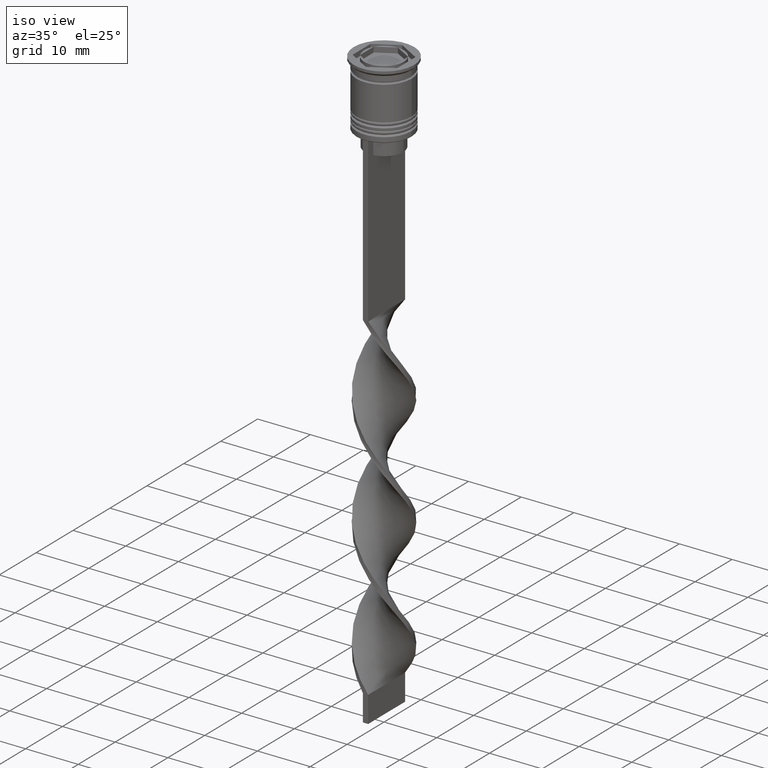
[diagram: clean part render]
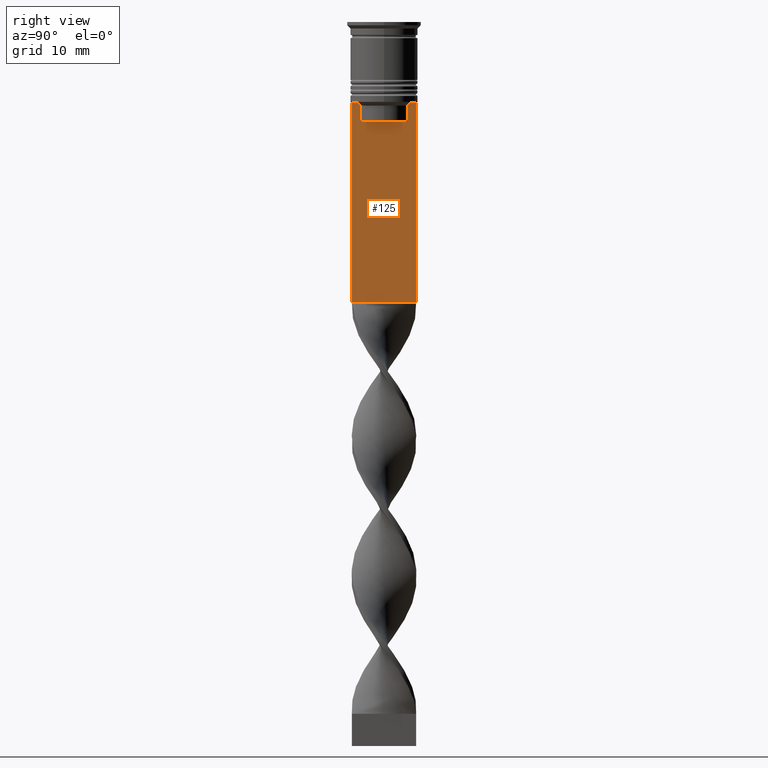
[diagram: tour spotlight — one face highlighted and labeled with its STEP entity id]
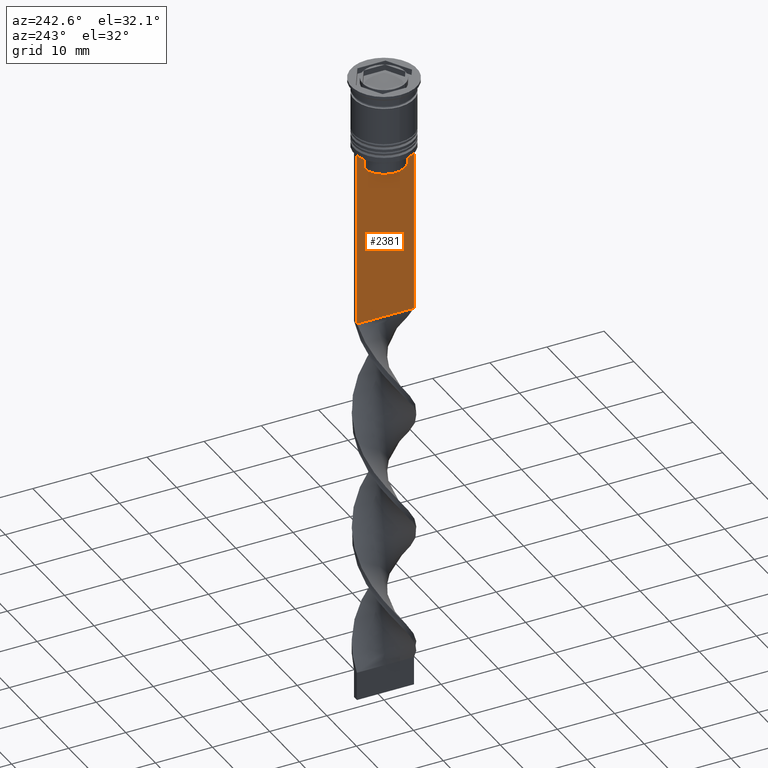
[diagram: tour spotlight — one face highlighted and labeled with its STEP entity id]
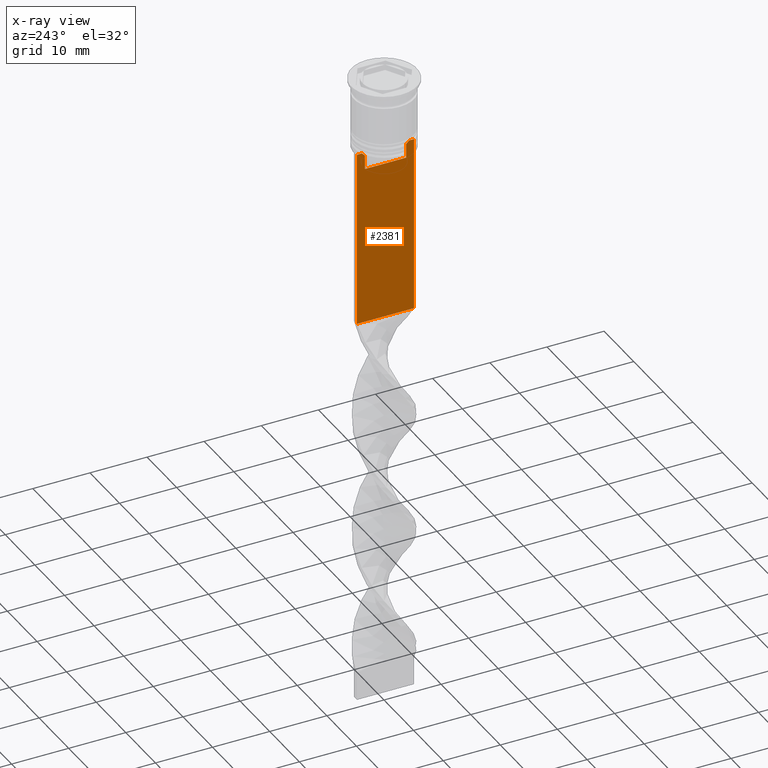
[diagram: x-ray of the same camera — body ghosted, this tour face saturated]
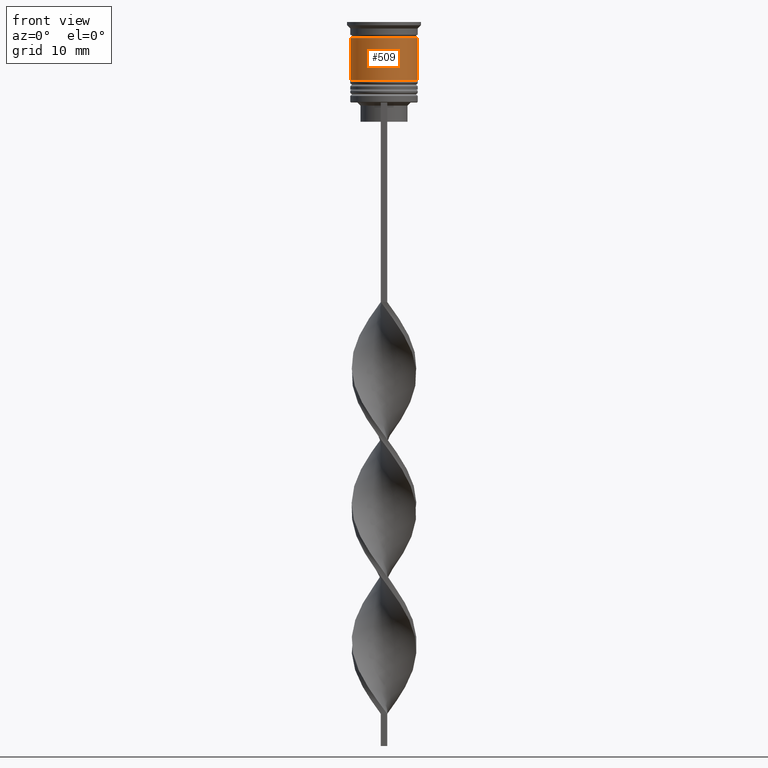
[diagram: tour spotlight — one face highlighted and labeled with its STEP entity id]
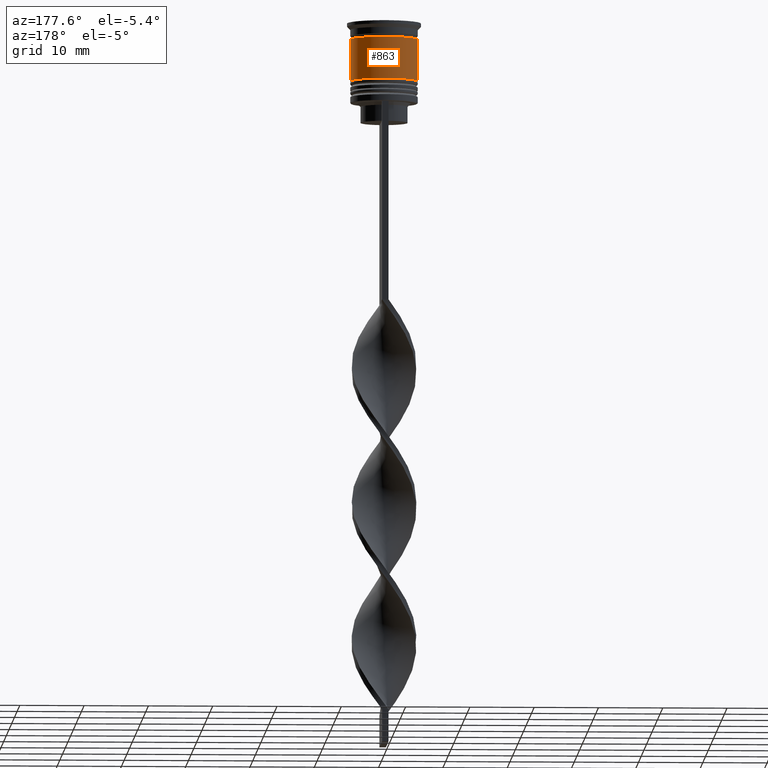
[diagram: tour spotlight — one face highlighted and labeled with its STEP entity id]
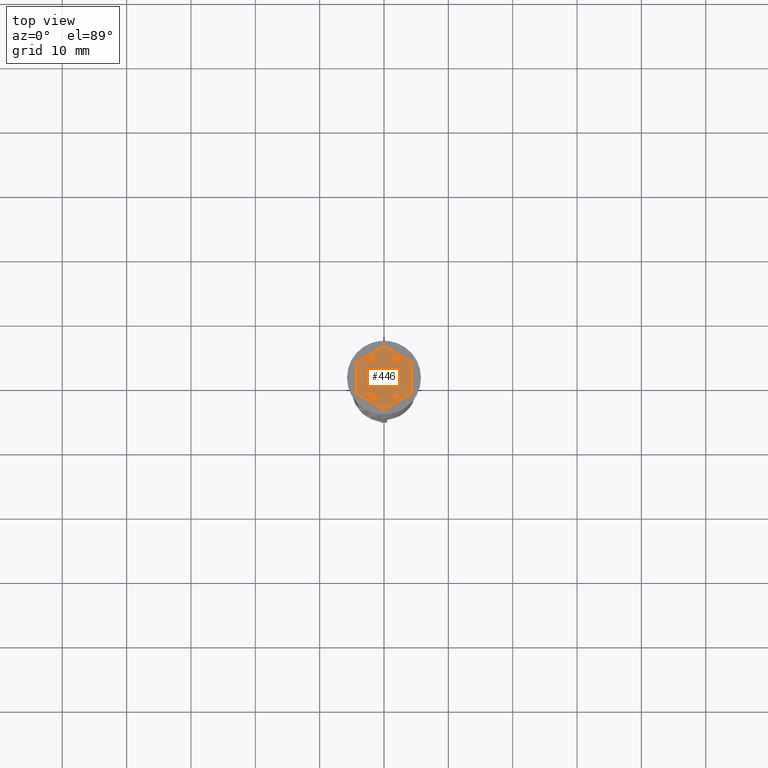
[diagram: tour spotlight — one face highlighted and labeled with its STEP entity id]
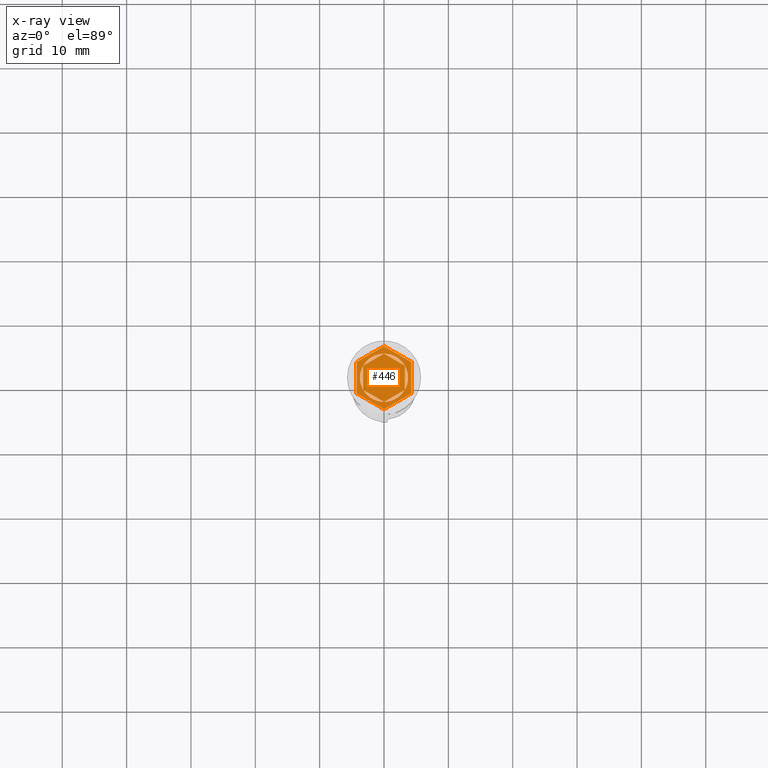
[diagram: x-ray of the same camera — body ghosted, this tour face saturated]
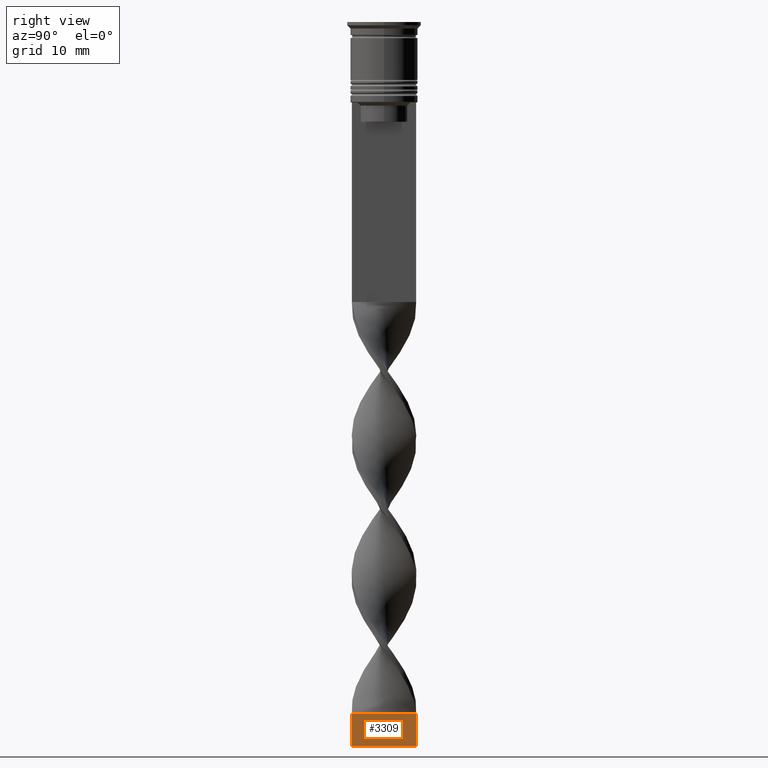
[diagram: tour spotlight — one face highlighted and labeled with its STEP entity id]
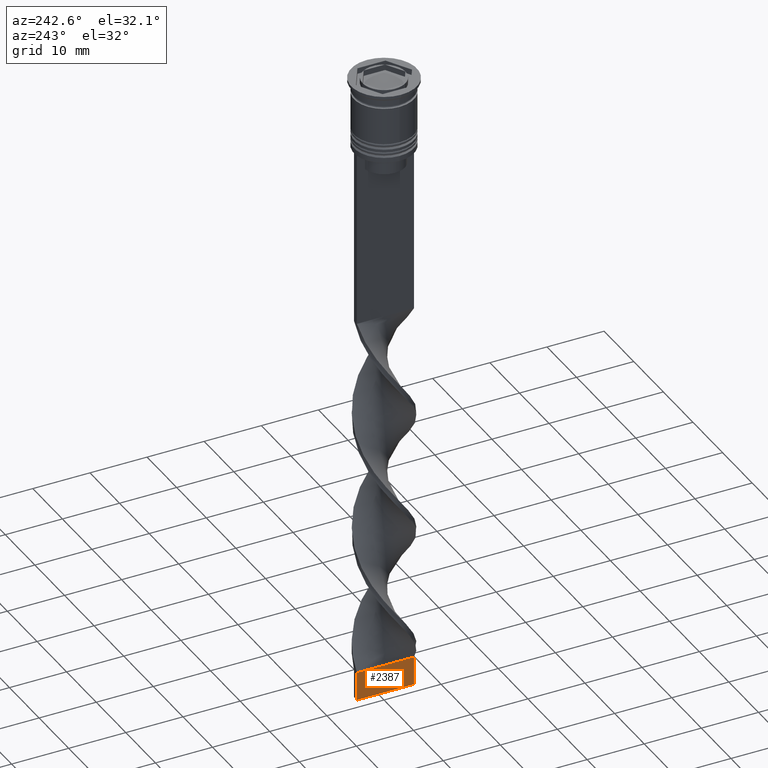
[diagram: tour spotlight — one face highlighted and labeled with its STEP entity id]
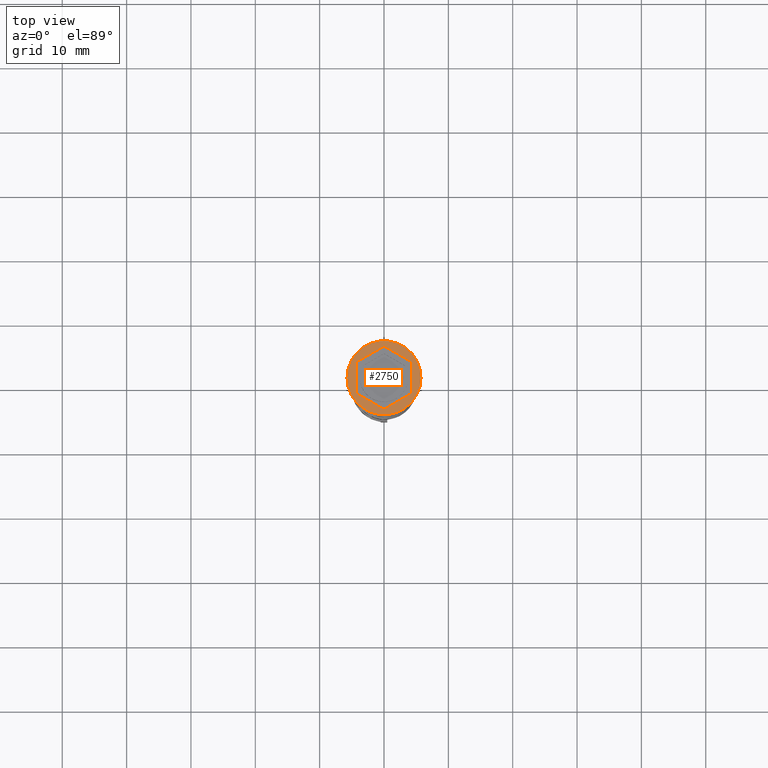
[diagram: tour spotlight — one face highlighted and labeled with its STEP entity id]
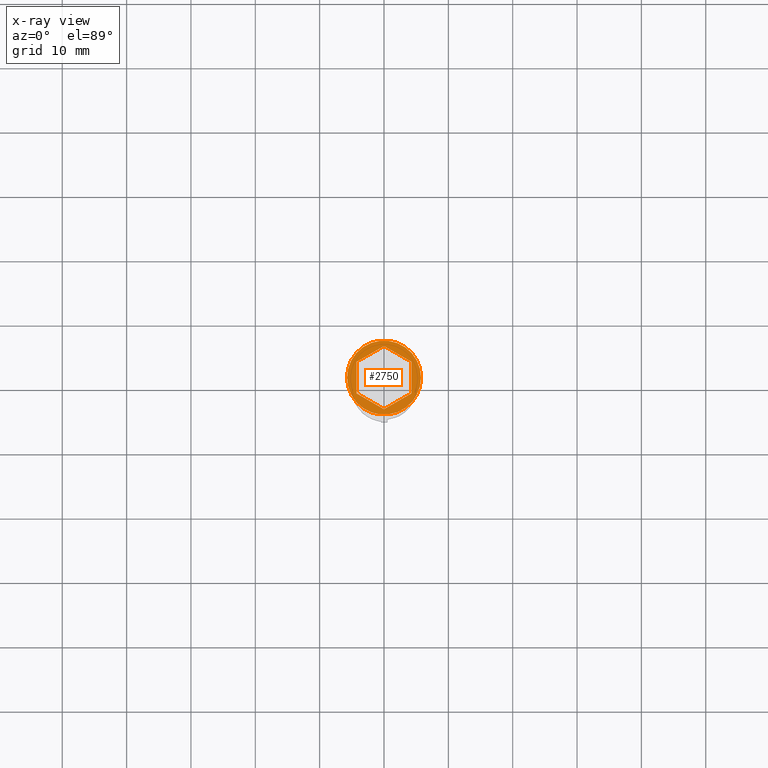
[diagram: x-ray of the same camera — body ghosted, this tour face saturated]
A machine part: a face-by-face anatomy tour. The part has 95 B-rep faces; the first image is the clean iso view, then the 8 largest visible faces are spotlighted one at a time (largest first), each with its STEP entity span.

Face 1 — right view, entity #125. In plain terms, the highlighted planar face has unit normal (-1, 0, 0).
Definition (entity closure, byte-faithful):
#47 = CARTESIAN_POINT ( 'NONE',  ( 0.5000000000000000000, 3.615591237958188042, -13.00000000000000178 ) ) ;
#80 = LINE ( 'NONE', #3315, #1233 ) ;
#125 = ADVANCED_FACE ( 'NONE', ( #648 ), #360, .F. ) ;
#155 = VECTOR ( 'NONE', #1322, 1000.000000000000000 ) ;
#189 = EDGE_CURVE ( 'NONE', #733, #1301, #2890, .T. ) ;
#208 = VERTEX_POINT ( 'NONE', #735 ) ;
#280 = CARTESIAN_POINT ( 'NONE',  ( 0.5000000000000000000, 5.000000000000000888, -12.50000000000000000 ) ) ;
#283 = CARTESIAN_POINT ( 'NONE',  ( 0.5000000000000000000, 5.000000000000000888, -43.50000000000000000 ) ) ;
#327 = VERTEX_POINT ( 'NONE', #1881 ) ;
#360 = PLANE ( 'NONE',  #1274 ) ;
#366 = CARTESIAN_POINT ( 'NONE',  ( 0.5000000000000000000, -4.999999999999999112, -12.50000000000000000 ) ) ;
#409 = CARTESIAN_POINT ( 'NONE',  ( 0.5000000000000000000, -3.615591237958188042, -13.00000000000000178 ) ) ;
#415 = ORIENTED_EDGE ( 'NONE', *, *, #3276, .T. ) ;
#428 = VECTOR ( 'NONE', #1180, 1000.000000000000000 ) ;
#458 = VERTEX_POINT ( 'NONE', #283 ) ;
#613 = B_SPLINE_CURVE_WITH_KNOTS ( 'NONE', 3,
 ( #2005, #2279, #3335, #47 ),
 .UNSPECIFIED., .F., .F.,
 ( 4, 4 ),
 ( 0.007067514914986626831, 0.007777582239375525376 ),
 .UNSPECIFIED. ) ;
#617 = ORIENTED_EDGE ( 'NONE', *, *, #2042, .T. ) ;
#648 = FACE_OUTER_BOUND ( 'NONE', #954, .T. ) ;
#669 = VECTOR ( 'NONE', #837, 1000.000000000000000 ) ;
#670 = VECTOR ( 'NONE', #2687, 1000.000000000000000 ) ;
#680 = CARTESIAN_POINT ( 'NONE',  ( 0.5000000000000000000, -4.119769411022908834, -12.50000000000000000 ) ) ;
#698 = LINE ( 'NONE', #1546, #2539 ) ;
#717 = VECTOR ( 'NONE', #1421, 1000.000000000000000 ) ;
#733 = VERTEX_POINT ( 'NONE', #280 ) ;
#735 = CARTESIAN_POINT ( 'NONE',  ( 0.5000000000000000000, -3.615591237958188042, -13.00000000000000178 ) ) ;
#814 = B_SPLINE_CURVE_WITH_KNOTS ( 'NONE', 3,
 ( #409, #1492, #950, #680 ),
 .UNSPECIFIED., .F., .F.,
 ( 4, 4 ),
 ( 0.01745179617248910492, 0.01816207215777258452 ),
 .UNSPECIFIED. ) ;
#815 = LINE ( 'NONE', #1324, #669 ) ;
#837 = DIRECTION ( 'NONE',  ( 0.000000000000000000, -1.000000000000000000, 0.000000000000000000 ) ) ;
#875 = CARTESIAN_POINT ( 'NONE',  ( 0.5000000000000000000, 4.119769411022908834, -12.50000000000000000 ) ) ;
#949 = ORIENTED_EDGE ( 'NONE', *, *, #189, .T. ) ;
#950 = CARTESIAN_POINT ( 'NONE',  ( 0.5000000000000000000, -3.951794168112527927, -12.66675163073525923 ) ) ;
#954 = EDGE_LOOP ( 'NONE', ( #949, #1933, #415, #3377, #3141, #3515, #1026, #1791, #617, #2583 ) ) ;
#1025 = CARTESIAN_POINT ( 'NONE',  ( 0.5000000000000000000, 3.615591237958188042, -13.00000000000000178 ) ) ;
#1026 = ORIENTED_EDGE ( 'NONE', *, *, #3184, .T. ) ;
#1030 = CARTESIAN_POINT ( 'NONE',  ( 0.5000000000000000000, -3.615591237958188042, 0.000000000000000000 ) ) ;
#1132 = CARTESIAN_POINT ( 'NONE',  ( 0.5000000000000000000, 3.615591237958188042, 0.000000000000000000 ) ) ;
#1180 = DIRECTION ( 'NONE',  ( 0.000000000000000000, -1.000000000000000000, 0.000000000000000000 ) ) ;
#1186 = VERTEX_POINT ( 'NONE', #366 ) ;
#1187 = DIRECTION ( 'NONE',  ( 0.000000000000000000, 0.000000000000000000, -1.000000000000000000 ) ) ;
#1233 = VECTOR ( 'NONE', #2793, 1000.000000000000000 ) ;
#1274 = AXIS2_PLACEMENT_3D ( 'NONE', #1443, #3172, #1468 ) ;
#1301 = VERTEX_POINT ( 'NONE', #875 ) ;
#1319 = VERTEX_POINT ( 'NONE', #3263 ) ;
#1322 = DIRECTION ( 'NONE',  ( -0.000000000000000000, -0.000000000000000000, 1.000000000000000000 ) ) ;
#1324 = CARTESIAN_POINT ( 'NONE',  ( 0.5000000000000000000, -4.999999999999999112, -12.50000000000000000 ) ) ;
#1404 = CARTESIAN_POINT ( 'NONE',  ( 0.5000000000000000000, -4.999999999999999112, -2.450124378879110054 ) ) ;
#1417 = LINE ( 'NONE', #1132, #1800 ) ;
#1421 = DIRECTION ( 'NONE',  ( 0.000000000000000000, 0.000000000000000000, -1.000000000000000000 ) ) ;
#1442 = EDGE_CURVE ( 'NONE', #1186, #3278, #2508, .T. ) ;
#1443 = CARTESIAN_POINT ( 'NONE',  ( 0.5000000000000000000, -4.999999999999999112, -2.450124378879110054 ) ) ;
#1468 = DIRECTION ( 'NONE',  ( 0.000000000000000000, 0.000000000000000000, 1.000000000000000000 ) ) ;
#1492 = CARTESIAN_POINT ( 'NONE',  ( 0.5000000000000000000, -3.783746406711539390, -12.83343003979123509 ) ) ;
#1533 = CARTESIAN_POINT ( 'NONE',  ( 0.5000000000000000000, -4.999999999999999112, -12.50000000000000000 ) ) ;
#1546 = CARTESIAN_POINT ( 'NONE',  ( 0.5000000000000000000, 5.000000000000000888, -2.450124378879110054 ) ) ;
#1635 = EDGE_CURVE ( 'NONE', #733, #458, #698, .T. ) ;
#1782 = DIRECTION ( 'NONE',  ( 0.000000000000000000, 0.000000000000000000, -1.000000000000000000 ) ) ;
#1791 = ORIENTED_EDGE ( 'NONE', *, *, #1442, .T. ) ;
#1800 = VECTOR ( 'NONE', #1187, 1000.000000000000000 ) ;
#1813 = EDGE_CURVE ( 'NONE', #2618, #208, #3213, .T. ) ;
#1872 = EDGE_CURVE ( 'NONE', #327, #2618, #2721, .T. ) ;
#1881 = CARTESIAN_POINT ( 'NONE',  ( 0.5000000000000000000, 3.615591237958188486, -15.50000000000000000 ) ) ;
#1933 = ORIENTED_EDGE ( 'NONE', *, *, #1986, .T. ) ;
#1986 = EDGE_CURVE ( 'NONE', #1301, #2438, #613, .T. ) ;
#2005 = CARTESIAN_POINT ( 'NONE',  ( 0.5000000000000000000, 4.119769411022908834, -12.50000000000000000 ) ) ;
#2042 = EDGE_CURVE ( 'NONE', #3278, #458, #80, .T. ) ;
#2279 = CARTESIAN_POINT ( 'NONE',  ( 0.5000000000000000000, 3.951794205566887985, -12.66675159355373737 ) ) ;
#2309 = CARTESIAN_POINT ( 'NONE',  ( 0.5000000000000000000, -3.615591237958188486, -15.50000000000000000 ) ) ;
#2438 = VERTEX_POINT ( 'NONE', #1025 ) ;
#2443 = CARTESIAN_POINT ( 'NONE',  ( 0.5000000000000000000, 3.650000000000003464, -15.50000000000000000 ) ) ;
#2508 = LINE ( 'NONE', #1404, #717 ) ;
#2539 = VECTOR ( 'NONE', #1782, 1000.000000000000000 ) ;
#2583 = ORIENTED_EDGE ( 'NONE', *, *, #1635, .F. ) ;
#2618 = VERTEX_POINT ( 'NONE', #2309 ) ;
#2687 = DIRECTION ( 'NONE',  ( 0.000000000000000000, -1.000000000000000000, 0.000000000000000000 ) ) ;
#2721 = LINE ( 'NONE', #2443, #670 ) ;
#2793 = DIRECTION ( 'NONE',  ( 0.000000000000000000, 1.000000000000000000, 0.000000000000000000 ) ) ;
#2890 = LINE ( 'NONE', #1533, #428 ) ;
#3141 = ORIENTED_EDGE ( 'NONE', *, *, #1813, .T. ) ;
#3172 = DIRECTION ( 'NONE',  ( -1.000000000000000000, 0.000000000000000000, 0.000000000000000000 ) ) ;
#3184 = EDGE_CURVE ( 'NONE', #1319, #1186, #815, .T. ) ;
#3213 = LINE ( 'NONE', #1030, #155 ) ;
#3263 = CARTESIAN_POINT ( 'NONE',  ( 0.5000000000000000000, -4.119769411022908834, -12.50000000000000000 ) ) ;
#3276 = EDGE_CURVE ( 'NONE', #2438, #327, #1417, .T. ) ;
#3278 = VERTEX_POINT ( 'NONE', #3283 ) ;
#3283 = CARTESIAN_POINT ( 'NONE',  ( 0.5000000000000000000, -4.999999999999999112, -43.50000000000000000 ) ) ;
#3315 = CARTESIAN_POINT ( 'NONE',  ( 0.5000000000000000000, -4.999999999999999112, -43.50000000000000000 ) ) ;
#3335 = CARTESIAN_POINT ( 'NONE',  ( 0.5000000000000000000, 3.783746449387932476, -12.83342999751715752 ) ) ;
#3377 = ORIENTED_EDGE ( 'NONE', *, *, #1872, .T. ) ;
#3477 = EDGE_CURVE ( 'NONE', #208, #1319, #814, .T. ) ;
#3515 = ORIENTED_EDGE ( 'NONE', *, *, #3477, .T. ) ;

Face 2 — auxiliary view, entity #2381. An x-ray twin of the same camera follows (body ghosted, this face saturated) — the face is partly hidden behind the body. In plain terms, the highlighted planar face has unit normal (-1, 0, 0).
Definition (entity closure, byte-faithful):
#20 = EDGE_CURVE ( 'NONE', #2718, #106, #2453, .T. ) ;
#106 = VERTEX_POINT ( 'NONE', #614 ) ;
#107 = LINE ( 'NONE', #2521, #256 ) ;
#256 = VECTOR ( 'NONE', #2262, 1000.000000000000000 ) ;
#354 = B_SPLINE_CURVE_WITH_KNOTS ( 'NONE', 3,
 ( #2510, #645, #2573, #2841 ),
 .UNSPECIFIED., .F., .F.,
 ( 4, 4 ),
 ( 0.01745179617248910492, 0.01816207215777258452 ),
 .UNSPECIFIED. ) ;
#355 = EDGE_CURVE ( 'NONE', #408, #3298, #3446, .T. ) ;
#356 = LINE ( 'NONE', #859, #892 ) ;
#408 = VERTEX_POINT ( 'NONE', #3510 ) ;
#420 = EDGE_CURVE ( 'NONE', #2930, #408, #2226, .T. ) ;
#457 = DIRECTION ( 'NONE',  ( 0.000000000000000000, -1.000000000000000000, 0.000000000000000000 ) ) ;
#485 = VECTOR ( 'NONE', #843, 1000.000000000000000 ) ;
#510 = DIRECTION ( 'NONE',  ( -1.000000000000000000, 0.000000000000000000, 0.000000000000000000 ) ) ;
#614 = CARTESIAN_POINT ( 'NONE',  ( -0.5000000000000000000, -3.615591237958188042, -13.00000000000000178 ) ) ;
#641 = DIRECTION ( 'NONE',  ( 0.000000000000000000, 0.000000000000000000, -1.000000000000000000 ) ) ;
#645 = CARTESIAN_POINT ( 'NONE',  ( -0.5000000000000000000, -3.783746406711538945, -12.83343003979123687 ) ) ;
#668 = EDGE_CURVE ( 'NONE', #1555, #2718, #2492, .T. ) ;
#696 = CARTESIAN_POINT ( 'NONE',  ( -0.5000000000000000000, 3.615591237958188042, 0.000000000000000000 ) ) ;
#756 = CARTESIAN_POINT ( 'NONE',  ( -0.5000000000000000000, -4.999999999999999112, -2.450124378879110054 ) ) ;
#782 = AXIS2_PLACEMENT_3D ( 'NONE', #756, #510, #3207 ) ;
#804 = CARTESIAN_POINT ( 'NONE',  ( -0.5000000000000000000, -3.615591237958188042, 0.000000000000000000 ) ) ;
#835 = CARTESIAN_POINT ( 'NONE',  ( -0.5000000000000000000, 3.951794205566887985, -12.66675159355373737 ) ) ;
#843 = DIRECTION ( 'NONE',  ( 0.000000000000000000, 0.000000000000000000, -1.000000000000000000 ) ) ;
#859 = CARTESIAN_POINT ( 'NONE',  ( -0.5000000000000000000, -4.999999999999999112, -12.50000000000000000 ) ) ;
#873 = CARTESIAN_POINT ( 'NONE',  ( -0.5000000000000000000, 5.000000000000000888, -43.50000000000000000 ) ) ;
#892 = VECTOR ( 'NONE', #2013, 1000.000000000000000 ) ;
#906 = EDGE_CURVE ( 'NONE', #1547, #1555, #2885, .T. ) ;
#964 = LINE ( 'NONE', #3369, #2944 ) ;
#1012 = ORIENTED_EDGE ( 'NONE', *, *, #2715, .F. ) ;
#1091 = CARTESIAN_POINT ( 'NONE',  ( -0.5000000000000000000, 4.119769411022908834, -12.50000000000000000 ) ) ;
#1200 = B_SPLINE_CURVE_WITH_KNOTS ( 'NONE', 3,
 ( #1091, #835, #1863, #1877 ),
 .UNSPECIFIED., .F., .F.,
 ( 4, 4 ),
 ( 0.007067514914986629433, 0.007777582239375527111 ),
 .UNSPECIFIED. ) ;
#1325 = DIRECTION ( 'NONE',  ( 0.000000000000000000, 1.000000000000000000, 0.000000000000000000 ) ) ;
#1384 = VECTOR ( 'NONE', #1325, 1000.000000000000000 ) ;
#1388 = ORIENTED_EDGE ( 'NONE', *, *, #1438, .F. ) ;
#1396 = VERTEX_POINT ( 'NONE', #2430 ) ;
#1424 = DIRECTION ( 'NONE',  ( 0.000000000000000000, -1.000000000000000000, 0.000000000000000000 ) ) ;
#1438 = EDGE_CURVE ( 'NONE', #1396, #2930, #356, .T. ) ;
#1450 = VECTOR ( 'NONE', #641, 1000.000000000000000 ) ;
#1547 = VERTEX_POINT ( 'NONE', #2225 ) ;
#1555 = VERTEX_POINT ( 'NONE', #3023 ) ;
#1565 = CARTESIAN_POINT ( 'NONE',  ( -0.5000000000000000000, -4.999999999999999112, -43.50000000000000000 ) ) ;
#1587 = VERTEX_POINT ( 'NONE', #2918 ) ;
#1836 = VERTEX_POINT ( 'NONE', #3258 ) ;
#1863 = CARTESIAN_POINT ( 'NONE',  ( -0.5000000000000000000, 3.783746449387932920, -12.83342999751715752 ) ) ;
#1877 = CARTESIAN_POINT ( 'NONE',  ( -0.5000000000000000000, 3.615591237958188042, -13.00000000000000178 ) ) ;
#1912 = EDGE_CURVE ( 'NONE', #1587, #1547, #1200, .T. ) ;
#2013 = DIRECTION ( 'NONE',  ( 0.000000000000000000, -1.000000000000000000, 0.000000000000000000 ) ) ;
#2014 = ORIENTED_EDGE ( 'NONE', *, *, #355, .F. ) ;
#2142 = ORIENTED_EDGE ( 'NONE', *, *, #3418, .T. ) ;
#2170 = EDGE_CURVE ( 'NONE', #1836, #1587, #964, .T. ) ;
#2225 = CARTESIAN_POINT ( 'NONE',  ( -0.5000000000000000000, 3.615591237958188042, -13.00000000000000178 ) ) ;
#2226 = LINE ( 'NONE', #3266, #485 ) ;
#2262 = DIRECTION ( 'NONE',  ( 0.000000000000000000, 0.000000000000000000, -1.000000000000000000 ) ) ;
#2286 = ORIENTED_EDGE ( 'NONE', *, *, #906, .F. ) ;
#2330 = ORIENTED_EDGE ( 'NONE', *, *, #2170, .F. ) ;
#2381 = ADVANCED_FACE ( 'NONE', ( #3193 ), #2392, .T. ) ;
#2392 = PLANE ( 'NONE',  #782 ) ;
#2430 = CARTESIAN_POINT ( 'NONE',  ( -0.5000000000000000000, -4.119769411022908834, -12.50000000000000000 ) ) ;
#2453 = LINE ( 'NONE', #804, #2593 ) ;
#2492 = LINE ( 'NONE', #2786, #2532 ) ;
#2510 = CARTESIAN_POINT ( 'NONE',  ( -0.5000000000000000000, -3.615591237958188042, -13.00000000000000178 ) ) ;
#2521 = CARTESIAN_POINT ( 'NONE',  ( -0.5000000000000000000, 5.000000000000000888, -2.450124378879110054 ) ) ;
#2532 = VECTOR ( 'NONE', #1424, 1000.000000000000000 ) ;
#2573 = CARTESIAN_POINT ( 'NONE',  ( -0.5000000000000000000, -3.951794168112525263, -12.66675163073526100 ) ) ;
#2593 = VECTOR ( 'NONE', #2973, 1000.000000000000000 ) ;
#2609 = CARTESIAN_POINT ( 'NONE',  ( -0.5000000000000000000, -4.999999999999999112, -12.50000000000000000 ) ) ;
#2715 = EDGE_CURVE ( 'NONE', #106, #1396, #354, .T. ) ;
#2718 = VERTEX_POINT ( 'NONE', #3042 ) ;
#2786 = CARTESIAN_POINT ( 'NONE',  ( -0.5000000000000000000, 3.650000000000003464, -15.50000000000000000 ) ) ;
#2841 = CARTESIAN_POINT ( 'NONE',  ( -0.5000000000000000000, -4.119769411022908834, -12.50000000000000000 ) ) ;
#2885 = LINE ( 'NONE', #696, #1450 ) ;
#2896 = ORIENTED_EDGE ( 'NONE', *, *, #20, .F. ) ;
#2905 = ORIENTED_EDGE ( 'NONE', *, *, #1912, .F. ) ;
#2918 = CARTESIAN_POINT ( 'NONE',  ( -0.5000000000000000000, 4.119769411022908834, -12.50000000000000000 ) ) ;
#2930 = VERTEX_POINT ( 'NONE', #2609 ) ;
#2944 = VECTOR ( 'NONE', #457, 1000.000000000000000 ) ;
#2973 = DIRECTION ( 'NONE',  ( -0.000000000000000000, -0.000000000000000000, 1.000000000000000000 ) ) ;
#3023 = CARTESIAN_POINT ( 'NONE',  ( -0.5000000000000000000, 3.615591237958188486, -15.50000000000000000 ) ) ;
#3030 = ORIENTED_EDGE ( 'NONE', *, *, #420, .F. ) ;
#3042 = CARTESIAN_POINT ( 'NONE',  ( -0.5000000000000000000, -3.615591237958188486, -15.50000000000000000 ) ) ;
#3160 = EDGE_LOOP ( 'NONE', ( #2905, #2330, #2142, #2014, #3030, #1388, #1012, #2896, #3422, #2286 ) ) ;
#3193 = FACE_OUTER_BOUND ( 'NONE', #3160, .T. ) ;
#3207 = DIRECTION ( 'NONE',  ( 0.000000000000000000, 0.000000000000000000, 1.000000000000000000 ) ) ;
#3258 = CARTESIAN_POINT ( 'NONE',  ( -0.5000000000000000000, 5.000000000000000888, -12.50000000000000000 ) ) ;
#3266 = CARTESIAN_POINT ( 'NONE',  ( -0.5000000000000000000, -4.999999999999999112, -2.450124378879110054 ) ) ;
#3298 = VERTEX_POINT ( 'NONE', #873 ) ;
#3369 = CARTESIAN_POINT ( 'NONE',  ( -0.5000000000000000000, -4.999999999999999112, -12.50000000000000000 ) ) ;
#3418 = EDGE_CURVE ( 'NONE', #1836, #3298, #107, .T. ) ;
#3422 = ORIENTED_EDGE ( 'NONE', *, *, #668, .F. ) ;
#3446 = LINE ( 'NONE', #1565, #1384 ) ;
#3510 = CARTESIAN_POINT ( 'NONE',  ( -0.5000000000000000000, -4.999999999999999112, -43.50000000000000000 ) ) ;

Face 3 — front view, entity #509. In plain terms, the highlighted cylindrical surface (edge-blend (fillet) strip) has radius 5.25 mm, axis along (-0, -0, 1).
Definition (entity closure, byte-faithful):
#116 = DIRECTION ( 'NONE',  ( -0.000000000000000000, -0.000000000000000000, 1.000000000000000000 ) ) ;
#154 = ORIENTED_EDGE ( 'NONE', *, *, #1268, .T. ) ;
#166 = VERTEX_POINT ( 'NONE', #343 ) ;
#343 = CARTESIAN_POINT ( 'NONE',  ( -5.250000000000000888, 6.429395695523605139E-16, -9.000000000000001776 ) ) ;
#434 = VECTOR ( 'NONE', #994, 1000.000000000000000 ) ;
#509 = ADVANCED_FACE ( 'NONE', ( #1625 ), #575, .T. ) ;
#575 = CYLINDRICAL_SURFACE ( 'NONE', #3152, 5.250000000000000000 ) ;
#720 = CARTESIAN_POINT ( 'NONE',  ( -5.250000000000000000, 6.429395695523604153E-16, 0.000000000000000000 ) ) ;
#732 = CARTESIAN_POINT ( 'NONE',  ( 5.249999999999999112, 0.000000000000000000, -2.499999999999999556 ) ) ;
#787 = VECTOR ( 'NONE', #116, 1000.000000000000000 ) ;
#961 = LINE ( 'NONE', #720, #787 ) ;
#986 = EDGE_CURVE ( 'NONE', #1809, #1605, #2569, .T. ) ;
#994 = DIRECTION ( 'NONE',  ( -0.000000000000000000, -0.000000000000000000, 1.000000000000000000 ) ) ;
#1223 = CARTESIAN_POINT ( 'NONE',  ( 5.250000000000000000, 0.000000000000000000, 0.000000000000000000 ) ) ;
#1268 = EDGE_CURVE ( 'NONE', #166, #1809, #3105, .T. ) ;
#1338 = CARTESIAN_POINT ( 'NONE',  ( 0.000000000000000000, 0.000000000000000000, 0.000000000000000000 ) ) ;
#1355 = CARTESIAN_POINT ( 'NONE',  ( 5.250000000000000888, 0.000000000000000000, -9.000000000000001776 ) ) ;
#1419 = CARTESIAN_POINT ( 'NONE',  ( 0.000000000000000000, 0.000000000000000000, -9.000000000000001776 ) ) ;
#1518 = AXIS2_PLACEMENT_3D ( 'NONE', #2221, #3317, #1704 ) ;
#1590 = ORIENTED_EDGE ( 'NONE', *, *, #986, .T. ) ;
#1605 = VERTEX_POINT ( 'NONE', #732 ) ;
#1625 = FACE_OUTER_BOUND ( 'NONE', #3445, .T. ) ;
#1662 = DIRECTION ( 'NONE',  ( -0.000000000000000000, -0.000000000000000000, 1.000000000000000000 ) ) ;
#1704 = DIRECTION ( 'NONE',  ( 1.000000000000000000, 0.000000000000000000, 0.000000000000000000 ) ) ;
#1809 = VERTEX_POINT ( 'NONE', #1355 ) ;
#1963 = ORIENTED_EDGE ( 'NONE', *, *, #3381, .F. ) ;
#2012 = VERTEX_POINT ( 'NONE', #3352 ) ;
#2088 = CIRCLE ( 'NONE', #1518, 5.249999999999999112 ) ;
#2126 = ORIENTED_EDGE ( 'NONE', *, *, #2661, .F. ) ;
#2184 = DIRECTION ( 'NONE',  ( 1.000000000000000000, 0.000000000000000000, 0.000000000000000000 ) ) ;
#2221 = CARTESIAN_POINT ( 'NONE',  ( 0.000000000000000000, 0.000000000000000000, -2.499999999999999556 ) ) ;
#2569 = LINE ( 'NONE', #1223, #434 ) ;
#2661 = EDGE_CURVE ( 'NONE', #166, #2012, #961, .T. ) ;
#2719 = DIRECTION ( 'NONE',  ( 1.000000000000000000, 0.000000000000000000, 0.000000000000000000 ) ) ;
#2877 = AXIS2_PLACEMENT_3D ( 'NONE', #1419, #3319, #2184 ) ;
#3105 = CIRCLE ( 'NONE', #2877, 5.250000000000000888 ) ;
#3152 = AXIS2_PLACEMENT_3D ( 'NONE', #1338, #1662, #2719 ) ;
#3317 = DIRECTION ( 'NONE',  ( -0.000000000000000000, -0.000000000000000000, 1.000000000000000000 ) ) ;
#3319 = DIRECTION ( 'NONE',  ( -0.000000000000000000, -0.000000000000000000, 1.000000000000000000 ) ) ;
#3352 = CARTESIAN_POINT ( 'NONE',  ( -5.249999999999999112, 6.429395695523604153E-16, -2.499999999999999556 ) ) ;
#3381 = EDGE_CURVE ( 'NONE', #2012, #1605, #2088, .T. ) ;
#3445 = EDGE_LOOP ( 'NONE', ( #2126, #154, #1590, #1963 ) ) ;

Face 4 — auxiliary view, entity #863. In plain terms, the highlighted cylindrical surface (edge-blend (fillet) strip) has radius 5.25 mm, axis along (-0, -0, 1).
Definition (entity closure, byte-faithful):
#15 = EDGE_CURVE ( 'NONE', #1809, #166, #2308, .T. ) ;
#51 = DIRECTION ( 'NONE',  ( 1.000000000000000000, 0.000000000000000000, 0.000000000000000000 ) ) ;
#116 = DIRECTION ( 'NONE',  ( -0.000000000000000000, -0.000000000000000000, 1.000000000000000000 ) ) ;
#166 = VERTEX_POINT ( 'NONE', #343 ) ;
#343 = CARTESIAN_POINT ( 'NONE',  ( -5.250000000000000888, 6.429395695523605139E-16, -9.000000000000001776 ) ) ;
#434 = VECTOR ( 'NONE', #994, 1000.000000000000000 ) ;
#445 = CARTESIAN_POINT ( 'NONE',  ( 0.000000000000000000, 0.000000000000000000, 0.000000000000000000 ) ) ;
#455 = EDGE_LOOP ( 'NONE', ( #2359, #2205, #3375, #2981 ) ) ;
#602 = CARTESIAN_POINT ( 'NONE',  ( 0.000000000000000000, 0.000000000000000000, -2.499999999999999556 ) ) ;
#626 = FACE_OUTER_BOUND ( 'NONE', #455, .T. ) ;
#716 = AXIS2_PLACEMENT_3D ( 'NONE', #445, #2284, #2052 ) ;
#720 = CARTESIAN_POINT ( 'NONE',  ( -5.250000000000000000, 6.429395695523604153E-16, 0.000000000000000000 ) ) ;
#732 = CARTESIAN_POINT ( 'NONE',  ( 5.249999999999999112, 0.000000000000000000, -2.499999999999999556 ) ) ;
#787 = VECTOR ( 'NONE', #116, 1000.000000000000000 ) ;
#863 = ADVANCED_FACE ( 'NONE', ( #626 ), #3147, .T. ) ;
#961 = LINE ( 'NONE', #720, #787 ) ;
#986 = EDGE_CURVE ( 'NONE', #1809, #1605, #2569, .T. ) ;
#994 = DIRECTION ( 'NONE',  ( -0.000000000000000000, -0.000000000000000000, 1.000000000000000000 ) ) ;
#1055 = AXIS2_PLACEMENT_3D ( 'NONE', #602, #2755, #51 ) ;
#1223 = CARTESIAN_POINT ( 'NONE',  ( 5.250000000000000000, 0.000000000000000000, 0.000000000000000000 ) ) ;
#1355 = CARTESIAN_POINT ( 'NONE',  ( 5.250000000000000888, 0.000000000000000000, -9.000000000000001776 ) ) ;
#1365 = DIRECTION ( 'NONE',  ( -0.000000000000000000, -0.000000000000000000, 1.000000000000000000 ) ) ;
#1382 = EDGE_CURVE ( 'NONE', #1605, #2012, #2706, .T. ) ;
#1605 = VERTEX_POINT ( 'NONE', #732 ) ;
#1809 = VERTEX_POINT ( 'NONE', #1355 ) ;
#2012 = VERTEX_POINT ( 'NONE', #3352 ) ;
#2052 = DIRECTION ( 'NONE',  ( 1.000000000000000000, 0.000000000000000000, 0.000000000000000000 ) ) ;
#2172 = CARTESIAN_POINT ( 'NONE',  ( 0.000000000000000000, 0.000000000000000000, -9.000000000000001776 ) ) ;
#2205 = ORIENTED_EDGE ( 'NONE', *, *, #2661, .T. ) ;
#2245 = AXIS2_PLACEMENT_3D ( 'NONE', #2172, #1365, #3251 ) ;
#2284 = DIRECTION ( 'NONE',  ( -0.000000000000000000, -0.000000000000000000, 1.000000000000000000 ) ) ;
#2308 = CIRCLE ( 'NONE', #2245, 5.250000000000000888 ) ;
#2359 = ORIENTED_EDGE ( 'NONE', *, *, #15, .T. ) ;
#2569 = LINE ( 'NONE', #1223, #434 ) ;
#2661 = EDGE_CURVE ( 'NONE', #166, #2012, #961, .T. ) ;
#2706 = CIRCLE ( 'NONE', #1055, 5.249999999999999112 ) ;
#2755 = DIRECTION ( 'NONE',  ( -0.000000000000000000, -0.000000000000000000, 1.000000000000000000 ) ) ;
#2981 = ORIENTED_EDGE ( 'NONE', *, *, #986, .F. ) ;
#3147 = CYLINDRICAL_SURFACE ( 'NONE', #716, 5.250000000000000000 ) ;
#3251 = DIRECTION ( 'NONE',  ( 1.000000000000000000, 0.000000000000000000, 0.000000000000000000 ) ) ;
#3352 = CARTESIAN_POINT ( 'NONE',  ( -5.249999999999999112, 6.429395695523604153E-16, -2.499999999999999556 ) ) ;
#3375 = ORIENTED_EDGE ( 'NONE', *, *, #1382, .F. ) ;

Face 5 — top view, entity #446. An x-ray twin of the same camera follows (body ghosted, this face saturated) — the face is partly hidden behind the body. In plain terms, the highlighted planar face has unit normal (0, 0, 1).
Definition (entity closure, byte-faithful):
#7 = DIRECTION ( 'NONE',  ( 1.000000000000000000, 0.000000000000000000, 0.000000000000000000 ) ) ;
#19 = LINE ( 'NONE', #1682, #24 ) ;
#24 = VECTOR ( 'NONE', #539, 1000.000000000000000 ) ;
#41 = ORIENTED_EDGE ( 'NONE', *, *, #1862, .F. ) ;
#61 = CARTESIAN_POINT ( 'NONE',  ( 3.250000000000001332, 1.870828693386969777, -1.000000000000000888 ) ) ;
#69 = CARTESIAN_POINT ( 'NONE',  ( 0.000000000000000000, 0.000000000000000000, -1.000000000000000000 ) ) ;
#70 = FACE_BOUND ( 'NONE', #650, .T. ) ;
#86 = VECTOR ( 'NONE', #1089, 1000.000000000000114 ) ;
#100 = VERTEX_POINT ( 'NONE', #182 ) ;
#122 = VERTEX_POINT ( 'NONE', #1157 ) ;
#145 = LINE ( 'NONE', #2100, #3161 ) ;
#167 = DIRECTION ( 'NONE',  ( 0.8660254037844385966, 0.5000000000000001110, -0.000000000000000000 ) ) ;
#182 = CARTESIAN_POINT ( 'NONE',  ( 3.245185174601965983, -1.879168215605940606, -1.000000000000000888 ) ) ;
#183 = EDGE_CURVE ( 'NONE', #3010, #1515, #3253, .T. ) ;
#197 = DIRECTION ( 'NONE',  ( -0.8660254037844387076, 0.4999999999999998335, 0.000000000000000000 ) ) ;
#200 = AXIS2_PLACEMENT_3D ( 'NONE', #1196, #1981, #943 ) ;
#214 = CARTESIAN_POINT ( 'NONE',  ( 0.000000000000000000, 0.000000000000000000, -1.000000000000000000 ) ) ;
#261 = CARTESIAN_POINT ( 'NONE',  ( 3.250000000000001332, 1.876388374866283959, -1.000000000000000888 ) ) ;
#276 = ORIENTED_EDGE ( 'NONE', *, *, #2084, .F. ) ;
#281 = EDGE_CURVE ( 'NONE', #1429, #3518, #1313, .T. ) ;
#288 = ORIENTED_EDGE ( 'NONE', *, *, #1941, .T. ) ;
#310 = AXIS2_PLACEMENT_3D ( 'NONE', #886, #559, #2218 ) ;
#330 = CARTESIAN_POINT ( 'NONE',  ( -2.168404344971008868E-16, -3.752776749732567474, -1.000000000000000888 ) ) ;
#430 = DIRECTION ( 'NONE',  ( 0.8660254037844385966, 0.5000000000000001110, 0.000000000000000000 ) ) ;
#441 = CARTESIAN_POINT ( 'NONE',  ( -0.004814825398034979984, 3.749996908992911937, -1.000000000000000888 ) ) ;
#446 = ADVANCED_FACE ( 'NONE', ( #70, #1709, #1174, #2727, #2988, #1153, #3289 ), #860, .T. ) ;
#506 = EDGE_CURVE ( 'NONE', #1071, #3387, #19, .T. ) ;
#514 = DIRECTION ( 'NONE',  ( 0.000000000000000000, 0.000000000000000000, 1.000000000000000000 ) ) ;
#536 = CIRCLE ( 'NONE', #310, 3.750000000000000888 ) ;
#537 = CARTESIAN_POINT ( 'NONE',  ( 4.250000000000000000, -2.453738644055909912, -1.000000000000000000 ) ) ;
#539 = DIRECTION ( 'NONE',  ( -4.622506457652797323E-16, -1.000000000000000000, 0.000000000000000000 ) ) ;
#559 = DIRECTION ( 'NONE',  ( 0.000000000000000000, 0.000000000000000000, 1.000000000000000000 ) ) ;
#561 = LINE ( 'NONE', #2673, #2475 ) ;
#572 = EDGE_CURVE ( 'NONE', #2296, #1627, #536, .T. ) ;
#589 = EDGE_CURVE ( 'NONE', #100, #2321, #3519, .T. ) ;
#590 = ORIENTED_EDGE ( 'NONE', *, *, #1675, .T. ) ;
#615 = VECTOR ( 'NONE', #167, 1000.000000000000114 ) ;
#650 = EDGE_LOOP ( 'NONE', ( #1127, #2577 ) ) ;
#657 = CARTESIAN_POINT ( 'NONE',  ( 4.392932287340942424E-16, -4.907477288111819824, -1.000000000000000000 ) ) ;
#663 = VECTOR ( 'NONE', #3022, 999.9999999999998863 ) ;
#706 = ORIENTED_EDGE ( 'NONE', *, *, #3016, .F. ) ;
#719 = CIRCLE ( 'NONE', #2040, 3.750000000000000888 ) ;
#740 = ORIENTED_EDGE ( 'NONE', *, *, #183, .F. ) ;
#751 = EDGE_CURVE ( 'NONE', #3143, #905, #1151, .T. ) ;
#754 = EDGE_CURVE ( 'NONE', #3052, #3143, #2185, .T. ) ;
#767 = CARTESIAN_POINT ( 'NONE',  ( 3.245185174601965095, 1.879168215605940828, -1.000000000000000888 ) ) ;
#773 = AXIS2_PLACEMENT_3D ( 'NONE', #69, #2243, #2489 ) ;
#820 = CARTESIAN_POINT ( 'NONE',  ( 0.000000000000000000, 0.000000000000000000, -1.000000000000000000 ) ) ;
#860 = PLANE ( 'NONE',  #2469 ) ;
#886 = CARTESIAN_POINT ( 'NONE',  ( 0.000000000000000000, 0.000000000000000000, -1.000000000000000000 ) ) ;
#888 = VECTOR ( 'NONE', #2781, 1000.000000000000000 ) ;
#905 = VERTEX_POINT ( 'NONE', #2011 ) ;
#911 = CARTESIAN_POINT ( 'NONE',  ( 0.000000000000000000, 0.000000000000000000, -1.000000000000000000 ) ) ;
#940 = ORIENTED_EDGE ( 'NONE', *, *, #751, .T. ) ;
#943 = DIRECTION ( 'NONE',  ( 1.000000000000000000, 0.000000000000000000, 0.000000000000000000 ) ) ;
#970 = ORIENTED_EDGE ( 'NONE', *, *, #2970, .T. ) ;
#1015 = CARTESIAN_POINT ( 'NONE',  ( -3.245185174601965983, 1.879168215605940384, -1.000000000000000888 ) ) ;
#1061 = AXIS2_PLACEMENT_3D ( 'NONE', #2717, #3452, #2669 ) ;
#1071 = VERTEX_POINT ( 'NONE', #61 ) ;
#1089 = DIRECTION ( 'NONE',  ( -0.8660254037844385966, -0.4999999999999999445, 0.000000000000000000 ) ) ;
#1127 = ORIENTED_EDGE ( 'NONE', *, *, #1289, .F. ) ;
#1151 = LINE ( 'NONE', #1420, #888 ) ;
#1153 = FACE_BOUND ( 'NONE', #1205, .T. ) ;
#1157 = CARTESIAN_POINT ( 'NONE',  ( -0.004814825398034979984, -3.749996908992911937, -1.000000000000000888 ) ) ;
#1167 = CARTESIAN_POINT ( 'NONE',  ( -3.245185174601965983, -1.879168215605940384, -1.000000000000000888 ) ) ;
#1174 = FACE_BOUND ( 'NONE', #2460, .T. ) ;
#1196 = CARTESIAN_POINT ( 'NONE',  ( 0.000000000000000000, 0.000000000000000000, -1.000000000000000000 ) ) ;
#1198 = ORIENTED_EDGE ( 'NONE', *, *, #572, .F. ) ;
#1205 = EDGE_LOOP ( 'NONE', ( #1198, #706 ) ) ;
#1216 = VERTEX_POINT ( 'NONE', #2073 ) ;
#1224 = ORIENTED_EDGE ( 'NONE', *, *, #754, .T. ) ;
#1227 = ORIENTED_EDGE ( 'NONE', *, *, #2529, .F. ) ;
#1261 = CARTESIAN_POINT ( 'NONE',  ( 4.250000000000000000, 2.453738644055909912, -1.000000000000000000 ) ) ;
#1270 = EDGE_LOOP ( 'NONE', ( #2714, #2068 ) ) ;
#1275 = DIRECTION ( 'NONE',  ( -0.8660254037844385966, 0.5000000000000001110, 0.000000000000000000 ) ) ;
#1289 = EDGE_CURVE ( 'NONE', #3518, #1429, #2030, .T. ) ;
#1313 = LINE ( 'NONE', #261, #1326 ) ;
#1326 = VECTOR ( 'NONE', #2956, 1000.000000000000000 ) ;
#1331 = EDGE_LOOP ( 'NONE', ( #740, #2544, #41 ) ) ;
#1420 = CARTESIAN_POINT ( 'NONE',  ( -4.250000000000000000, 2.453738644055909468, -1.000000000000000000 ) ) ;
#1429 = VERTEX_POINT ( 'NONE', #2799 ) ;
#1432 = CARTESIAN_POINT ( 'NONE',  ( -3.250000000000000444, -1.870828693386971331, -1.000000000000000888 ) ) ;
#1440 = DIRECTION ( 'NONE',  ( 0.000000000000000000, 0.000000000000000000, 1.000000000000000000 ) ) ;
#1475 = EDGE_CURVE ( 'NONE', #3387, #1071, #1904, .T. ) ;
#1515 = VERTEX_POINT ( 'NONE', #1995 ) ;
#1526 = EDGE_LOOP ( 'NONE', ( #276, #2670 ) ) ;
#1532 = LINE ( 'NONE', #1261, #3275 ) ;
#1577 = LINE ( 'NONE', #537, #2663 ) ;
#1581 = DIRECTION ( 'NONE',  ( 0.8660254037844387076, -0.4999999999999999445, 0.000000000000000000 ) ) ;
#1604 = DIRECTION ( 'NONE',  ( 0.000000000000000000, 1.000000000000000000, 0.000000000000000000 ) ) ;
#1627 = VERTEX_POINT ( 'NONE', #1015 ) ;
#1629 = DIRECTION ( 'NONE',  ( 1.000000000000000000, 0.000000000000000000, 0.000000000000000000 ) ) ;
#1664 = EDGE_CURVE ( 'NONE', #122, #3401, #145, .T. ) ;
#1675 = EDGE_CURVE ( 'NONE', #3457, #1216, #1796, .T. ) ;
#1682 = CARTESIAN_POINT ( 'NONE',  ( 3.249999999999999556, -1.876388374866284403, -1.000000000000000888 ) ) ;
#1709 = FACE_BOUND ( 'NONE', #1270, .T. ) ;
#1771 = CARTESIAN_POINT ( 'NONE',  ( -3.250000000000000444, 1.870828693386971331, -1.000000000000000888 ) ) ;
#1796 = LINE ( 'NONE', #3148, #2991 ) ;
#1855 = CIRCLE ( 'NONE', #1061, 3.750000000000000888 ) ;
#1862 = EDGE_CURVE ( 'NONE', #1515, #2072, #2372, .T. ) ;
#1904 = CIRCLE ( 'NONE', #773, 3.750000000000000888 ) ;
#1934 = CARTESIAN_POINT ( 'NONE',  ( 3.249999999999999556, -1.870828693386972885, -1.000000000000000888 ) ) ;
#1941 = EDGE_CURVE ( 'NONE', #905, #3457, #2965, .T. ) ;
#1974 = EDGE_CURVE ( 'NONE', #2072, #3010, #561, .T. ) ;
#1981 = DIRECTION ( 'NONE',  ( 0.000000000000000000, 0.000000000000000000, 1.000000000000000000 ) ) ;
#1995 = CARTESIAN_POINT ( 'NONE',  ( -3.750000000000000888, 0.000000000000000000, -1.000000000000000000 ) ) ;
#2011 = CARTESIAN_POINT ( 'NONE',  ( -4.250000000000000000, -2.453738644055909912, -1.000000000000000000 ) ) ;
#2030 = CIRCLE ( 'NONE', #2192, 3.750000000000000888 ) ;
#2040 = AXIS2_PLACEMENT_3D ( 'NONE', #911, #2543, #3297 ) ;
#2068 = ORIENTED_EDGE ( 'NONE', *, *, #506, .F. ) ;
#2072 = VERTEX_POINT ( 'NONE', #1432 ) ;
#2073 = CARTESIAN_POINT ( 'NONE',  ( 4.250000000000000000, -2.453738644055909912, -1.000000000000000000 ) ) ;
#2084 = EDGE_CURVE ( 'NONE', #3401, #122, #719, .T. ) ;
#2085 = LINE ( 'NONE', #2906, #615 ) ;
#2100 = CARTESIAN_POINT ( 'NONE',  ( -3.250000000000000444, -1.876388374866283515, -1.000000000000000888 ) ) ;
#2141 = VECTOR ( 'NONE', #1581, 1000.000000000000000 ) ;
#2185 = LINE ( 'NONE', #3320, #663 ) ;
#2192 = AXIS2_PLACEMENT_3D ( 'NONE', #2241, #2505, #7 ) ;
#2218 = DIRECTION ( 'NONE',  ( 1.000000000000000000, 0.000000000000000000, 0.000000000000000000 ) ) ;
#2241 = CARTESIAN_POINT ( 'NONE',  ( 0.000000000000000000, 0.000000000000000000, -1.000000000000000000 ) ) ;
#2243 = DIRECTION ( 'NONE',  ( 0.000000000000000000, 0.000000000000000000, 1.000000000000000000 ) ) ;
#2296 = VERTEX_POINT ( 'NONE', #441 ) ;
#2321 = VERTEX_POINT ( 'NONE', #2346 ) ;
#2346 = CARTESIAN_POINT ( 'NONE',  ( 0.004814825398034546303, -3.749996908992911493, -1.000000000000000888 ) ) ;
#2372 = CIRCLE ( 'NONE', #2942, 3.750000000000000888 ) ;
#2384 = CARTESIAN_POINT ( 'NONE',  ( 0.000000000000000000, 4.907477288111818936, -1.000000000000000000 ) ) ;
#2460 = EDGE_LOOP ( 'NONE', ( #1227, #2622 ) ) ;
#2469 = AXIS2_PLACEMENT_3D ( 'NONE', #820, #1440, #3322 ) ;
#2475 = VECTOR ( 'NONE', #2655, 1000.000000000000000 ) ;
#2477 = EDGE_LOOP ( 'NONE', ( #970, #1224, #940, #288, #590, #3504 ) ) ;
#2489 = DIRECTION ( 'NONE',  ( 1.000000000000000000, 0.000000000000000000, 0.000000000000000000 ) ) ;
#2505 = DIRECTION ( 'NONE',  ( 0.000000000000000000, 0.000000000000000000, 1.000000000000000000 ) ) ;
#2507 = EDGE_CURVE ( 'NONE', #1216, #2688, #1577, .T. ) ;
#2529 = EDGE_CURVE ( 'NONE', #2321, #100, #1855, .T. ) ;
#2543 = DIRECTION ( 'NONE',  ( 0.000000000000000000, 0.000000000000000000, 1.000000000000000000 ) ) ;
#2544 = ORIENTED_EDGE ( 'NONE', *, *, #1974, .F. ) ;
#2577 = ORIENTED_EDGE ( 'NONE', *, *, #281, .F. ) ;
#2622 = ORIENTED_EDGE ( 'NONE', *, *, #589, .F. ) ;
#2655 = DIRECTION ( 'NONE',  ( 0.000000000000000000, 1.000000000000000000, 0.000000000000000000 ) ) ;
#2663 = VECTOR ( 'NONE', #1604, 1000.000000000000000 ) ;
#2669 = DIRECTION ( 'NONE',  ( 1.000000000000000000, 0.000000000000000000, 0.000000000000000000 ) ) ;
#2670 = ORIENTED_EDGE ( 'NONE', *, *, #1664, .F. ) ;
#2673 = CARTESIAN_POINT ( 'NONE',  ( -3.250000000000000444, 1.876388374866283515, -1.000000000000000888 ) ) ;
#2688 = VERTEX_POINT ( 'NONE', #3305 ) ;
#2689 = CARTESIAN_POINT ( 'NONE',  ( -4.250000000000000000, 2.453738644055909468, -1.000000000000000000 ) ) ;
#2700 = CARTESIAN_POINT ( 'NONE',  ( -4.250000000000000000, -2.453738644055909912, -1.000000000000000000 ) ) ;
#2714 = ORIENTED_EDGE ( 'NONE', *, *, #1475, .F. ) ;
#2717 = CARTESIAN_POINT ( 'NONE',  ( 0.000000000000000000, 0.000000000000000000, -1.000000000000000000 ) ) ;
#2727 = FACE_BOUND ( 'NONE', #1526, .T. ) ;
#2781 = DIRECTION ( 'NONE',  ( 0.000000000000000000, -1.000000000000000000, 0.000000000000000000 ) ) ;
#2799 = CARTESIAN_POINT ( 'NONE',  ( 0.004814825398034112622, 3.749996908992911493, -1.000000000000000888 ) ) ;
#2906 = CARTESIAN_POINT ( 'NONE',  ( 0.000000000000000000, 3.752776749732567474, -1.000000000000000888 ) ) ;
#2942 = AXIS2_PLACEMENT_3D ( 'NONE', #214, #514, #1629 ) ;
#2956 = DIRECTION ( 'NONE',  ( 0.8660254037844387076, -0.4999999999999998890, 0.000000000000000000 ) ) ;
#2965 = LINE ( 'NONE', #2700, #2141 ) ;
#2970 = EDGE_CURVE ( 'NONE', #2688, #3052, #1532, .T. ) ;
#2988 = FACE_BOUND ( 'NONE', #1331, .T. ) ;
#2991 = VECTOR ( 'NONE', #430, 1000.000000000000000 ) ;
#3010 = VERTEX_POINT ( 'NONE', #1771 ) ;
#3016 = EDGE_CURVE ( 'NONE', #1627, #2296, #2085, .T. ) ;
#3022 = DIRECTION ( 'NONE',  ( -0.8660254037844387076, -0.4999999999999999445, 0.000000000000000000 ) ) ;
#3052 = VERTEX_POINT ( 'NONE', #2384 ) ;
#3143 = VERTEX_POINT ( 'NONE', #2689 ) ;
#3148 = CARTESIAN_POINT ( 'NONE',  ( 4.392932287340942424E-16, -4.907477288111819824, -1.000000000000000000 ) ) ;
#3161 = VECTOR ( 'NONE', #1275, 1000.000000000000114 ) ;
#3253 = CIRCLE ( 'NONE', #200, 3.750000000000000888 ) ;
#3275 = VECTOR ( 'NONE', #197, 1000.000000000000114 ) ;
#3289 = FACE_OUTER_BOUND ( 'NONE', #2477, .T. ) ;
#3297 = DIRECTION ( 'NONE',  ( 1.000000000000000000, 0.000000000000000000, 0.000000000000000000 ) ) ;
#3305 = CARTESIAN_POINT ( 'NONE',  ( 4.250000000000000000, 2.453738644055909912, -1.000000000000000000 ) ) ;
#3320 = CARTESIAN_POINT ( 'NONE',  ( 0.000000000000000000, 4.907477288111818936, -1.000000000000000000 ) ) ;
#3322 = DIRECTION ( 'NONE',  ( 1.000000000000000000, 0.000000000000000000, -0.000000000000000000 ) ) ;
#3387 = VERTEX_POINT ( 'NONE', #1934 ) ;
#3401 = VERTEX_POINT ( 'NONE', #1167 ) ;
#3452 = DIRECTION ( 'NONE',  ( 0.000000000000000000, 0.000000000000000000, 1.000000000000000000 ) ) ;
#3457 = VERTEX_POINT ( 'NONE', #657 ) ;
#3504 = ORIENTED_EDGE ( 'NONE', *, *, #2507, .T. ) ;
#3518 = VERTEX_POINT ( 'NONE', #767 ) ;
#3519 = LINE ( 'NONE', #330, #86 ) ;

Face 6 — right view, entity #3309. In plain terms, the highlighted planar face has unit normal (-1, 0, 0).
Definition (entity closure, byte-faithful):
#49 = DIRECTION ( 'NONE',  ( -1.301042606982605321E-16, -1.000000000000000000, 0.000000000000000000 ) ) ;
#68 = VERTEX_POINT ( 'NONE', #864 ) ;
#87 = DIRECTION ( 'NONE',  ( -0.000000000000000000, -0.000000000000000000, 1.000000000000000000 ) ) ;
#128 = CARTESIAN_POINT ( 'NONE',  ( 0.5000000000000006661, 4.999999999999999112, -112.5000000000000000 ) ) ;
#138 = CARTESIAN_POINT ( 'NONE',  ( 0.5000000000000006661, 4.999999999999999112, -112.5000000000000000 ) ) ;
#279 = CARTESIAN_POINT ( 'NONE',  ( 0.4999999999999993339, -5.000000000000000888, -107.5000000000000000 ) ) ;
#478 = VERTEX_POINT ( 'NONE', #898 ) ;
#550 = VECTOR ( 'NONE', #1790, 1000.000000000000000 ) ;
#623 = FACE_OUTER_BOUND ( 'NONE', #3098, .T. ) ;
#817 = CARTESIAN_POINT ( 'NONE',  ( 0.4999999999999993339, -5.000000000000000888, -112.5000000000000000 ) ) ;
#854 = ORIENTED_EDGE ( 'NONE', *, *, #1755, .F. ) ;
#864 = CARTESIAN_POINT ( 'NONE',  ( 0.5000000000000006661, 4.999999999999999112, -107.5000000000000000 ) ) ;
#891 = ORIENTED_EDGE ( 'NONE', *, *, #2274, .T. ) ;
#898 = CARTESIAN_POINT ( 'NONE',  ( 0.5000000000000006661, 4.999999999999999112, -112.5000000000000000 ) ) ;
#974 = ORIENTED_EDGE ( 'NONE', *, *, #1500, .F. ) ;
#990 = CARTESIAN_POINT ( 'NONE',  ( 0.4999999999999993339, -5.000000000000000888, -107.5000000000000000 ) ) ;
#1148 = CARTESIAN_POINT ( 'NONE',  ( 0.5000000000000006661, 4.999999999999999112, -112.5000000000000000 ) ) ;
#1192 = CARTESIAN_POINT ( 'NONE',  ( 0.4999999999999993339, -5.000000000000000888, -112.5000000000000000 ) ) ;
#1241 = VERTEX_POINT ( 'NONE', #279 ) ;
#1246 = VERTEX_POINT ( 'NONE', #817 ) ;
#1500 = EDGE_CURVE ( 'NONE', #1246, #1241, #1938, .T. ) ;
#1525 = CARTESIAN_POINT ( 'NONE',  ( 0.5000000000000002220, 1.666666666666666075, -107.5000000000000000 ) ) ;
#1562 = LINE ( 'NONE', #128, #3110 ) ;
#1667 = PLANE ( 'NONE',  #2660 ) ;
#1755 = EDGE_CURVE ( 'NONE', #478, #1246, #1562, .T. ) ;
#1778 = ORIENTED_EDGE ( 'NONE', *, *, #2322, .T. ) ;
#1790 = DIRECTION ( 'NONE',  ( -0.000000000000000000, -0.000000000000000000, 1.000000000000000000 ) ) ;
#1938 = LINE ( 'NONE', #1192, #2825 ) ;
#2239 = DIRECTION ( 'NONE',  ( -1.000000000000000000, 1.301042606982605321E-16, 0.000000000000000000 ) ) ;
#2274 = EDGE_CURVE ( 'NONE', #478, #68, #2617, .T. ) ;
#2303 = DIRECTION ( 'NONE',  ( -1.301042606982605321E-16, -1.000000000000000000, 0.000000000000000000 ) ) ;
#2322 = EDGE_CURVE ( 'NONE', #68, #1241, #2576, .T. ) ;
#2576 = B_SPLINE_CURVE_WITH_KNOTS ( 'NONE', 3,
 ( #2879, #1525, #3421, #990 ),
 .UNSPECIFIED., .F., .F.,
 ( 4, 4 ),
 ( 0.000000000000000000, 1.000000000000000000 ),
 .UNSPECIFIED. ) ;
#2617 = LINE ( 'NONE', #138, #550 ) ;
#2660 = AXIS2_PLACEMENT_3D ( 'NONE', #1148, #2239, #49 ) ;
#2825 = VECTOR ( 'NONE', #87, 1000.000000000000000 ) ;
#2879 = CARTESIAN_POINT ( 'NONE',  ( 0.5000000000000006661, 4.999999999999999112, -107.5000000000000000 ) ) ;
#3098 = EDGE_LOOP ( 'NONE', ( #1778, #974, #854, #891 ) ) ;
#3110 = VECTOR ( 'NONE', #2303, 1000.000000000000000 ) ;
#3309 = ADVANCED_FACE ( 'NONE', ( #623 ), #1667, .F. ) ;
#3421 = CARTESIAN_POINT ( 'NONE',  ( 0.4999999999999997780, -1.666666666666667851, -107.5000000000000000 ) ) ;

Face 7 — auxiliary view, entity #2387. In plain terms, the highlighted planar face has unit normal (1, -0, 0).
Definition (entity closure, byte-faithful):
#18 = ORIENTED_EDGE ( 'NONE', *, *, #2558, .F. ) ;
#72 = CARTESIAN_POINT ( 'NONE',  ( -0.5000000000000002220, -1.666666666666667851, -107.5000000000000000 ) ) ;
#170 = LINE ( 'NONE', #2291, #1340 ) ;
#236 = VERTEX_POINT ( 'NONE', #1598 ) ;
#270 = DIRECTION ( 'NONE',  ( 1.301042606982605321E-16, 1.000000000000000000, 0.000000000000000000 ) ) ;
#358 = LINE ( 'NONE', #1694, #2043 ) ;
#370 = CARTESIAN_POINT ( 'NONE',  ( -0.4999999999999993339, 4.999999999999999112, -107.5000000000000000 ) ) ;
#495 = VECTOR ( 'NONE', #3288, 1000.000000000000000 ) ;
#501 = ORIENTED_EDGE ( 'NONE', *, *, #658, .T. ) ;
#630 = CARTESIAN_POINT ( 'NONE',  ( -0.4999999999999993339, 4.999999999999999112, -107.5000000000000000 ) ) ;
#658 = EDGE_CURVE ( 'NONE', #2536, #3394, #1551, .T. ) ;
#1118 = LINE ( 'NONE', #2210, #495 ) ;
#1177 = AXIS2_PLACEMENT_3D ( 'NONE', #2437, #2696, #270 ) ;
#1335 = FACE_OUTER_BOUND ( 'NONE', #1488, .T. ) ;
#1340 = VECTOR ( 'NONE', #1503, 1000.000000000000000 ) ;
#1434 = CARTESIAN_POINT ( 'NONE',  ( -0.5000000000000006661, -5.000000000000000888, -112.5000000000000000 ) ) ;
#1453 = ORIENTED_EDGE ( 'NONE', *, *, #2729, .F. ) ;
#1488 = EDGE_LOOP ( 'NONE', ( #501, #1453, #18, #3399 ) ) ;
#1503 = DIRECTION ( 'NONE',  ( 1.301042606982605321E-16, 1.000000000000000000, 0.000000000000000000 ) ) ;
#1545 = EDGE_CURVE ( 'NONE', #3410, #2536, #1118, .T. ) ;
#1551 = B_SPLINE_CURVE_WITH_KNOTS ( 'NONE', 3,
 ( #1695, #72, #2468, #630 ),
 .UNSPECIFIED., .F., .F.,
 ( 4, 4 ),
 ( 0.000000000000000000, 1.000000000000000000 ),
 .UNSPECIFIED. ) ;
#1598 = CARTESIAN_POINT ( 'NONE',  ( -0.4999999999999993339, 4.999999999999999112, -112.5000000000000000 ) ) ;
#1694 = CARTESIAN_POINT ( 'NONE',  ( -0.4999999999999993339, 4.999999999999999112, -112.5000000000000000 ) ) ;
#1695 = CARTESIAN_POINT ( 'NONE',  ( -0.5000000000000006661, -5.000000000000000888, -107.5000000000000000 ) ) ;
#1823 = CARTESIAN_POINT ( 'NONE',  ( -0.5000000000000006661, -5.000000000000000888, -107.5000000000000000 ) ) ;
#2043 = VECTOR ( 'NONE', #2246, 1000.000000000000000 ) ;
#2158 = PLANE ( 'NONE',  #1177 ) ;
#2210 = CARTESIAN_POINT ( 'NONE',  ( -0.5000000000000006661, -5.000000000000000888, -112.5000000000000000 ) ) ;
#2246 = DIRECTION ( 'NONE',  ( -0.000000000000000000, -0.000000000000000000, 1.000000000000000000 ) ) ;
#2291 = CARTESIAN_POINT ( 'NONE',  ( -0.5000000000000006661, -5.000000000000000888, -112.5000000000000000 ) ) ;
#2387 = ADVANCED_FACE ( 'NONE', ( #1335 ), #2158, .F. ) ;
#2437 = CARTESIAN_POINT ( 'NONE',  ( -0.5000000000000006661, -5.000000000000000888, -112.5000000000000000 ) ) ;
#2468 = CARTESIAN_POINT ( 'NONE',  ( -0.4999999999999997780, 1.666666666666666075, -107.5000000000000000 ) ) ;
#2536 = VERTEX_POINT ( 'NONE', #1823 ) ;
#2558 = EDGE_CURVE ( 'NONE', #3410, #236, #170, .T. ) ;
#2696 = DIRECTION ( 'NONE',  ( 1.000000000000000000, -1.301042606982605321E-16, 0.000000000000000000 ) ) ;
#2729 = EDGE_CURVE ( 'NONE', #236, #3394, #358, .T. ) ;
#3288 = DIRECTION ( 'NONE',  ( -0.000000000000000000, -0.000000000000000000, 1.000000000000000000 ) ) ;
#3394 = VERTEX_POINT ( 'NONE', #370 ) ;
#3399 = ORIENTED_EDGE ( 'NONE', *, *, #1545, .T. ) ;
#3410 = VERTEX_POINT ( 'NONE', #1434 ) ;

Face 8 — top view, entity #2750. An x-ray twin of the same camera follows (body ghosted, this face saturated) — the face is partly hidden behind the body. In plain terms, the highlighted planar face has unit normal (0, -0, 1).
Definition (entity closure, byte-faithful):
#74 = EDGE_CURVE ( 'NONE', #1416, #146, #1943, .T. ) ;
#146 = VERTEX_POINT ( 'NONE', #2249 ) ;
#173 = DIRECTION ( 'NONE',  ( 1.000000000000000000, 0.000000000000000000, 0.000000000000000000 ) ) ;
#205 = VERTEX_POINT ( 'NONE', #3364 ) ;
#237 = CARTESIAN_POINT ( 'NONE',  ( 0.000000000000000000, 4.907477288111818936, 0.000000000000000000 ) ) ;
#243 = ORIENTED_EDGE ( 'NONE', *, *, #2442, .F. ) ;
#431 = ORIENTED_EDGE ( 'NONE', *, *, #1234, .F. ) ;
#432 = DIRECTION ( 'NONE',  ( 1.000000000000000000, 0.000000000000000000, 0.000000000000000000 ) ) ;
#456 = LINE ( 'NONE', #723, #605 ) ;
#466 = VERTEX_POINT ( 'NONE', #1672 ) ;
#538 = VERTEX_POINT ( 'NONE', #1144 ) ;
#587 = CARTESIAN_POINT ( 'NONE',  ( -4.250000000000000000, 2.453738644055909468, 0.000000000000000000 ) ) ;
#605 = VECTOR ( 'NONE', #2344, 1000.000000000000114 ) ;
#723 = CARTESIAN_POINT ( 'NONE',  ( 4.250000000000000000, 2.453738644055909912, 0.000000000000000000 ) ) ;
#725 = CARTESIAN_POINT ( 'NONE',  ( 0.000000000000000000, 0.000000000000000000, 0.000000000000000000 ) ) ;
#841 = VECTOR ( 'NONE', #1215, 1000.000000000000000 ) ;
#919 = CARTESIAN_POINT ( 'NONE',  ( -4.250000000000000000, 2.453738644055909468, 0.000000000000000000 ) ) ;
#921 = FACE_OUTER_BOUND ( 'NONE', #1073, .T. ) ;
#1008 = VECTOR ( 'NONE', #1318, 999.9999999999998863 ) ;
#1029 = EDGE_CURVE ( 'NONE', #2383, #466, #2791, .T. ) ;
#1073 = EDGE_LOOP ( 'NONE', ( #2827, #2006 ) ) ;
#1144 = CARTESIAN_POINT ( 'NONE',  ( -5.750000000000000000, 7.041719095097280880E-16, 0.000000000000000000 ) ) ;
#1173 = DIRECTION ( 'NONE',  ( 0.000000000000000000, 1.000000000000000000, 0.000000000000000000 ) ) ;
#1194 = PLANE ( 'NONE',  #2481 ) ;
#1215 = DIRECTION ( 'NONE',  ( 0.8660254037844387076, -0.4999999999999999445, 0.000000000000000000 ) ) ;
#1228 = CARTESIAN_POINT ( 'NONE',  ( 4.250000000000000000, 2.453738644055909912, 0.000000000000000000 ) ) ;
#1234 = EDGE_CURVE ( 'NONE', #2966, #205, #456, .T. ) ;
#1318 = DIRECTION ( 'NONE',  ( -0.8660254037844387076, -0.4999999999999999445, 0.000000000000000000 ) ) ;
#1416 = VERTEX_POINT ( 'NONE', #919 ) ;
#1463 = DIRECTION ( 'NONE',  ( 0.000000000000000000, -0.000000000000000000, 1.000000000000000000 ) ) ;
#1464 = CIRCLE ( 'NONE', #3053, 5.750000000000000000 ) ;
#1485 = FACE_BOUND ( 'NONE', #1949, .T. ) ;
#1509 = EDGE_CURVE ( 'NONE', #466, #2966, #2759, .T. ) ;
#1522 = LINE ( 'NONE', #1733, #841 ) ;
#1672 = CARTESIAN_POINT ( 'NONE',  ( 4.250000000000000000, -2.453738644055909912, 0.000000000000000000 ) ) ;
#1676 = DIRECTION ( 'NONE',  ( 0.000000000000000000, -1.000000000000000000, 0.000000000000000000 ) ) ;
#1733 = CARTESIAN_POINT ( 'NONE',  ( -4.250000000000000000, -2.453738644055909912, 0.000000000000000000 ) ) ;
#1740 = VECTOR ( 'NONE', #3055, 1000.000000000000000 ) ;
#1816 = DIRECTION ( 'NONE',  ( -0.000000000000000000, -0.000000000000000000, 1.000000000000000000 ) ) ;
#1857 = AXIS2_PLACEMENT_3D ( 'NONE', #2657, #1816, #432 ) ;
#1943 = LINE ( 'NONE', #587, #3314 ) ;
#1949 = EDGE_LOOP ( 'NONE', ( #431, #2560, #2862, #3366, #3136, #243 ) ) ;
#2006 = ORIENTED_EDGE ( 'NONE', *, *, #2214, .T. ) ;
#2015 = CARTESIAN_POINT ( 'NONE',  ( 0.000000000000000000, 0.000000000000000000, 0.000000000000000000 ) ) ;
#2201 = CARTESIAN_POINT ( 'NONE',  ( 4.392932287340942424E-16, -4.907477288111819824, 0.000000000000000000 ) ) ;
#2214 = EDGE_CURVE ( 'NONE', #538, #2589, #1464, .T. ) ;
#2249 = CARTESIAN_POINT ( 'NONE',  ( -4.250000000000000000, -2.453738644055909912, 0.000000000000000000 ) ) ;
#2344 = DIRECTION ( 'NONE',  ( -0.8660254037844387076, 0.4999999999999998335, 0.000000000000000000 ) ) ;
#2383 = VERTEX_POINT ( 'NONE', #2682 ) ;
#2442 = EDGE_CURVE ( 'NONE', #205, #1416, #2949, .T. ) ;
#2481 = AXIS2_PLACEMENT_3D ( 'NONE', #2015, #1463, #3065 ) ;
#2560 = ORIENTED_EDGE ( 'NONE', *, *, #1509, .F. ) ;
#2589 = VERTEX_POINT ( 'NONE', #3365 ) ;
#2613 = EDGE_CURVE ( 'NONE', #146, #2383, #1522, .T. ) ;
#2657 = CARTESIAN_POINT ( 'NONE',  ( 0.000000000000000000, 0.000000000000000000, 0.000000000000000000 ) ) ;
#2682 = CARTESIAN_POINT ( 'NONE',  ( 4.392932287340942424E-16, -4.907477288111819824, 0.000000000000000000 ) ) ;
#2750 = ADVANCED_FACE ( 'NONE', ( #1485, #921 ), #1194, .T. ) ;
#2759 = LINE ( 'NONE', #3063, #3264 ) ;
#2791 = LINE ( 'NONE', #2201, #1740 ) ;
#2827 = ORIENTED_EDGE ( 'NONE', *, *, #2893, .T. ) ;
#2862 = ORIENTED_EDGE ( 'NONE', *, *, #1029, .F. ) ;
#2893 = EDGE_CURVE ( 'NONE', #2589, #538, #3056, .T. ) ;
#2949 = LINE ( 'NONE', #237, #1008 ) ;
#2966 = VERTEX_POINT ( 'NONE', #1228 ) ;
#3053 = AXIS2_PLACEMENT_3D ( 'NONE', #725, #3439, #173 ) ;
#3055 = DIRECTION ( 'NONE',  ( 0.8660254037844385966, 0.5000000000000001110, 0.000000000000000000 ) ) ;
#3056 = CIRCLE ( 'NONE', #1857, 5.750000000000000000 ) ;
#3063 = CARTESIAN_POINT ( 'NONE',  ( 4.250000000000000000, -2.453738644055909912, 0.000000000000000000 ) ) ;
#3065 = DIRECTION ( 'NONE',  ( 1.000000000000000000, 0.000000000000000000, 0.000000000000000000 ) ) ;
#3136 = ORIENTED_EDGE ( 'NONE', *, *, #74, .F. ) ;
#3264 = VECTOR ( 'NONE', #1173, 1000.000000000000000 ) ;
#3314 = VECTOR ( 'NONE', #1676, 1000.000000000000000 ) ;
#3364 = CARTESIAN_POINT ( 'NONE',  ( 0.000000000000000000, 4.907477288111818936, 0.000000000000000000 ) ) ;
#3365 = CARTESIAN_POINT ( 'NONE',  ( 5.750000000000000000, 0.000000000000000000, 0.000000000000000000 ) ) ;
#3366 = ORIENTED_EDGE ( 'NONE', *, *, #2613, .F. ) ;
#3439 = DIRECTION ( 'NONE',  ( -0.000000000000000000, -0.000000000000000000, 1.000000000000000000 ) ) ;